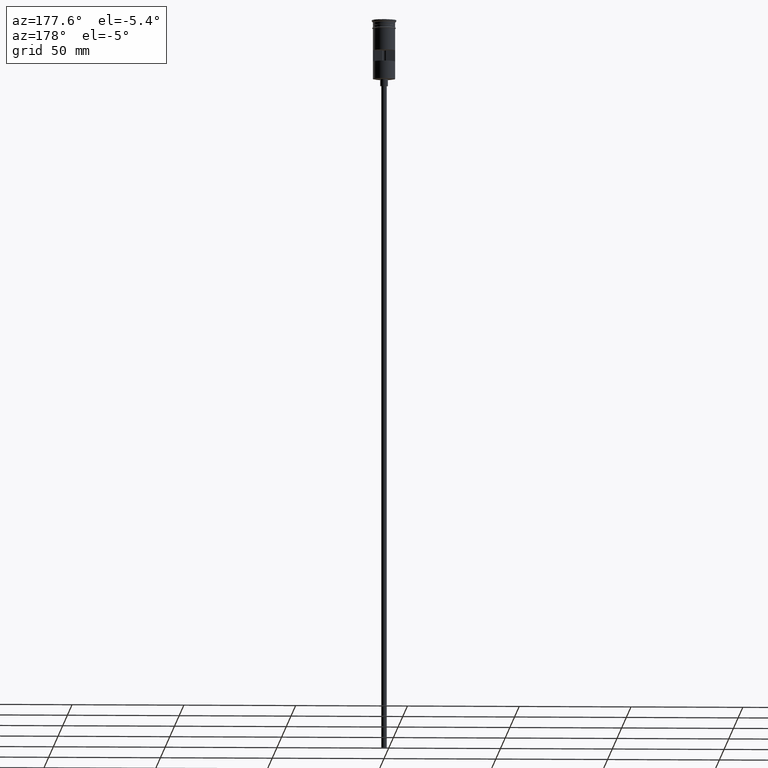
[diagram: clean part render]
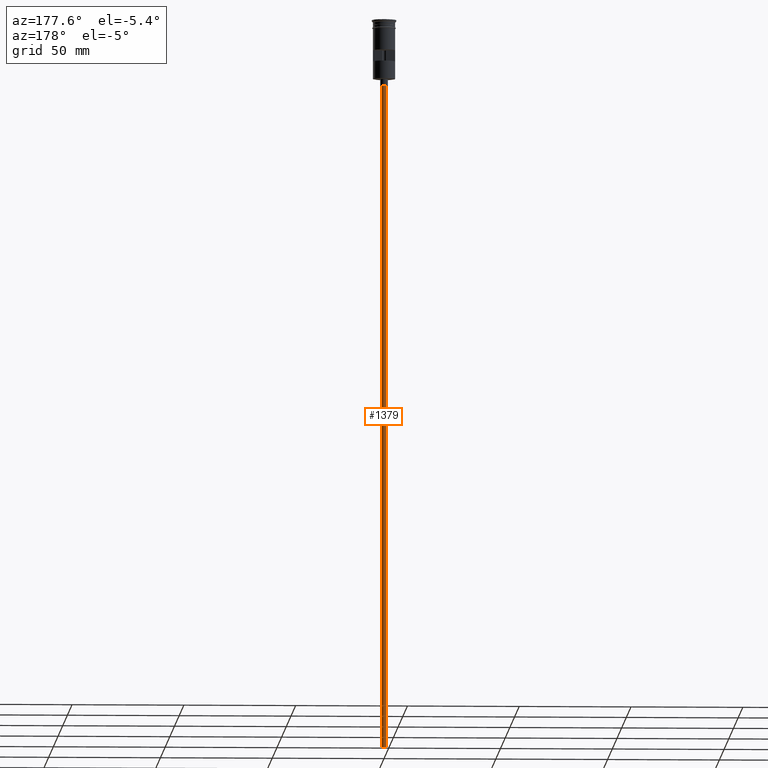
[diagram: same view with one face highlighted and labeled with its STEP entity id]
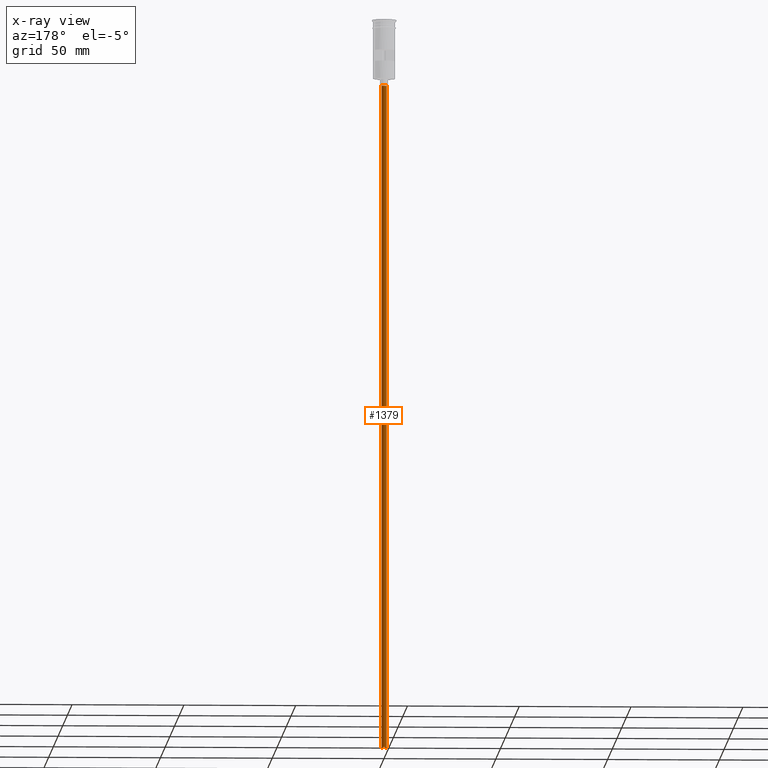
[diagram: x-ray of the same camera — body ghosted, the highlighted face saturated]
A machine part, auxiliary view. The second image highlights one B-rep face of the part: STEP entity #1379.
The next image is the same camera in x-ray: the body ghosted, the highlighted face saturated — about 0% of this face is hidden behind the body in this view.
In plain terms, the highlighted cylindrical surface (edge-blend (fillet) strip) has radius 1.25 mm, axis along (-0, -0, 1).
Its self-contained STEP definition (entity closure, byte-faithful):
#41 = CARTESIAN_POINT ( 'NONE',  ( 0.000000000000000000, 0.000000000000000000, -326.5000000000000000 ) ) ;
#161 = EDGE_CURVE ( 'NONE', #429, #1054, #1072, .T. ) ;
#181 = AXIS2_PLACEMENT_3D ( 'NONE', #41, #408, #1017 ) ;
#189 = CARTESIAN_POINT ( 'NONE',  ( 1.250000000000000000, 0.000000000000000000, -29.50000000000000000 ) ) ;
#228 = DIRECTION ( 'NONE',  ( -0.000000000000000000, -0.000000000000000000, 1.000000000000000000 ) ) ;
#357 = EDGE_CURVE ( 'NONE', #820, #1054, #416, .T. ) ;
#395 = CARTESIAN_POINT ( 'NONE',  ( 0.000000000000000000, 0.000000000000000000, -29.50000000000000000 ) ) ;
#408 = DIRECTION ( 'NONE',  ( 0.000000000000000000, 0.000000000000000000, -1.000000000000000000 ) ) ;
#410 = FACE_OUTER_BOUND ( 'NONE', #1174, .T. ) ;
#416 = CIRCLE ( 'NONE', #1107, 1.250000000000000000 ) ;
#429 = VERTEX_POINT ( 'NONE', #1351 ) ;
#433 = ORIENTED_EDGE ( 'NONE', *, *, #887, .F. ) ;
#444 = CARTESIAN_POINT ( 'NONE',  ( -1.250000000000000000, 1.530808498934191571E-16, -326.5000000000000000 ) ) ;
#555 = AXIS2_PLACEMENT_3D ( 'NONE', #1502, #1510, #1378 ) ;
#597 = VECTOR ( 'NONE', #228, 1000.000000000000000 ) ;
#628 = CARTESIAN_POINT ( 'NONE',  ( -1.250000000000000000, 1.530808498934191571E-16, -29.50000000000000000 ) ) ;
#789 = CYLINDRICAL_SURFACE ( 'NONE', #555, 1.250000000000000000 ) ;
#820 = VERTEX_POINT ( 'NONE', #628 ) ;
#887 = EDGE_CURVE ( 'NONE', #923, #429, #1317, .T. ) ;
#911 = CARTESIAN_POINT ( 'NONE',  ( -1.250000000000000000, 1.530808498934191571E-16, -326.5000000000000000 ) ) ;
#916 = ORIENTED_EDGE ( 'NONE', *, *, #357, .T. ) ;
#923 = VERTEX_POINT ( 'NONE', #911 ) ;
#952 = CARTESIAN_POINT ( 'NONE',  ( 1.250000000000000000, 0.000000000000000000, -326.5000000000000000 ) ) ;
#1017 = DIRECTION ( 'NONE',  ( -1.000000000000000000, 0.000000000000000000, 0.000000000000000000 ) ) ;
#1038 = EDGE_CURVE ( 'NONE', #923, #820, #1545, .T. ) ;
#1054 = VERTEX_POINT ( 'NONE', #189 ) ;
#1062 = DIRECTION ( 'NONE',  ( -0.000000000000000000, -0.000000000000000000, 1.000000000000000000 ) ) ;
#1072 = LINE ( 'NONE', #952, #597 ) ;
#1107 = AXIS2_PLACEMENT_3D ( 'NONE', #395, #1357, #1374 ) ;
#1174 = EDGE_LOOP ( 'NONE', ( #433, #1195, #916, #1384 ) ) ;
#1195 = ORIENTED_EDGE ( 'NONE', *, *, #1038, .T. ) ;
#1317 = CIRCLE ( 'NONE', #181, 1.250000000000000000 ) ;
#1351 = CARTESIAN_POINT ( 'NONE',  ( 1.250000000000000000, 0.000000000000000000, -326.5000000000000000 ) ) ;
#1357 = DIRECTION ( 'NONE',  ( 0.000000000000000000, 0.000000000000000000, -1.000000000000000000 ) ) ;
#1374 = DIRECTION ( 'NONE',  ( -1.000000000000000000, 0.000000000000000000, 0.000000000000000000 ) ) ;
#1378 = DIRECTION ( 'NONE',  ( 1.000000000000000000, 0.000000000000000000, 0.000000000000000000 ) ) ;
#1379 = ADVANCED_FACE ( 'NONE', ( #410 ), #789, .T. ) ;
#1384 = ORIENTED_EDGE ( 'NONE', *, *, #161, .F. ) ;
#1483 = VECTOR ( 'NONE', #1062, 1000.000000000000000 ) ;
#1502 = CARTESIAN_POINT ( 'NONE',  ( 0.000000000000000000, 0.000000000000000000, -326.5000000000000000 ) ) ;
#1510 = DIRECTION ( 'NONE',  ( -0.000000000000000000, -0.000000000000000000, 1.000000000000000000 ) ) ;
#1545 = LINE ( 'NONE', #444, #1483 ) ;